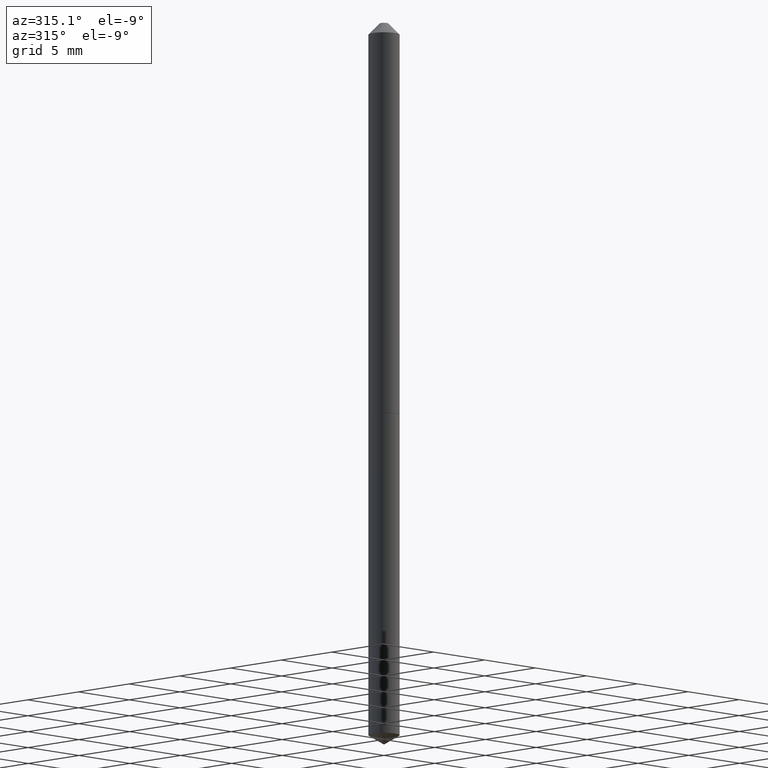
[diagram: clean part render]
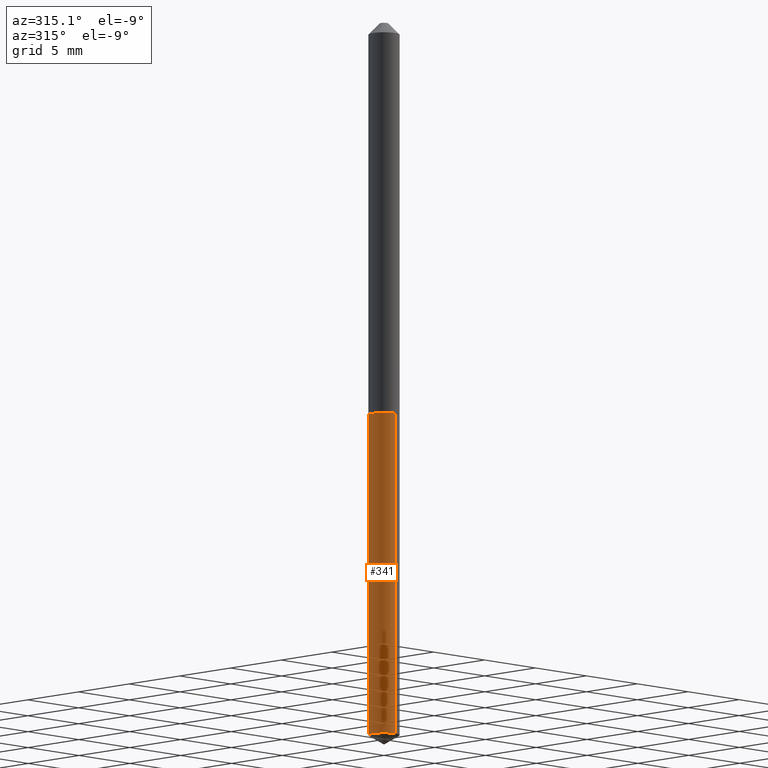
[diagram: same view with one face highlighted and labeled with its STEP entity id]
A machine part, auxiliary view. The second image highlights one B-rep face of the part: STEP entity #341.
In plain terms, the highlighted cylindrical surface (edge-blend (fillet) strip) has radius 1.0922 mm, axis along (-0, 0, 1).
Its self-contained STEP definition (entity closure, byte-faithful):
#27 = DIRECTION ( 'NONE',  ( -6.982962677686265922E-15, -1.000000000000000000, 3.176567434493329168E-15 ) ) ;
#31 = DIRECTION ( 'NONE',  ( -2.445460029168430373E-29, 3.491493908030625659E-15, 1.000000000000000000 ) ) ;
#35 = LINE ( 'NONE', #38, #353 ) ;
#36 = CYLINDRICAL_SURFACE ( 'NONE', #90, 0.04300000000000000350 ) ;
#38 = CARTESIAN_POINT ( 'NONE',  ( 3.055333763768695809E-16, 0.04299999999999620792, -1.086000000000000076 ) ) ;
#41 = CIRCLE ( 'NONE', #53, 0.04300000000000000350 ) ;
#53 = AXIS2_PLACEMENT_3D ( 'NONE', #124, #60, #182 ) ;
#60 = DIRECTION ( 'NONE',  ( -2.445460029168430373E-29, 3.491493908030625659E-15, 1.000000000000000000 ) ) ;
#70 = DIRECTION ( 'NONE',  ( -6.982962677686265922E-15, -1.000000000000000000, 3.176567434493329168E-15 ) ) ;
#76 = EDGE_LOOP ( 'NONE', ( #228, #113, #144, #371 ) ) ;
#90 = AXIS2_PLACEMENT_3D ( 'NONE', #282, #31, #70 ) ;
#108 = VERTEX_POINT ( 'NONE', #232 ) ;
#113 = ORIENTED_EDGE ( 'NONE', *, *, #162, .T. ) ;
#117 = VERTEX_POINT ( 'NONE', #145 ) ;
#119 = DIRECTION ( 'NONE',  ( -2.445460029168430373E-29, 3.491493908030625265E-15, 1.000000000000000000 ) ) ;
#124 = CARTESIAN_POINT ( 'NONE',  ( 4.827746223218873245E-29, -6.892764414714510057E-15, -1.974162993381815445 ) ) ;
#144 = ORIENTED_EDGE ( 'NONE', *, *, #167, .T. ) ;
#145 = CARTESIAN_POINT ( 'NONE',  ( 3.055333763768913732E-16, 0.04299999999999312011, -1.974162993381815667 ) ) ;
#162 = EDGE_CURVE ( 'NONE', #117, #255, #41, .T. ) ;
#167 = EDGE_CURVE ( 'NONE', #255, #266, #302, .T. ) ;
#181 = EDGE_CURVE ( 'NONE', #108, #266, #298, .T. ) ;
#182 = DIRECTION ( 'NONE',  ( -6.982962677686265922E-15, -1.000000000000000000, 6.353134868986658336E-15 ) ) ;
#187 = CARTESIAN_POINT ( 'NONE',  ( -3.002673951404828859E-16, -0.04300000000000379213, -1.085999999999999854 ) ) ;
#204 = DIRECTION ( 'NONE',  ( -2.445460029168430373E-29, 3.491493908030625659E-15, 1.000000000000000000 ) ) ;
#215 = FACE_OUTER_BOUND ( 'NONE', #76, .T. ) ;
#228 = ORIENTED_EDGE ( 'NONE', *, *, #352, .F. ) ;
#232 = CARTESIAN_POINT ( 'NONE',  ( 3.055333763768914225E-16, 0.04299999999999620792, -1.086000000000000076 ) ) ;
#238 = CARTESIAN_POINT ( 'NONE',  ( -3.002673951404828859E-16, -0.04300000000000379213, -1.085999999999999854 ) ) ;
#244 = CARTESIAN_POINT ( 'NONE',  ( -3.002673951404612415E-16, -0.04300000000000690770, -1.974162993381815001 ) ) ;
#245 = AXIS2_PLACEMENT_3D ( 'NONE', #272, #204, #27 ) ;
#255 = VERTEX_POINT ( 'NONE', #244 ) ;
#266 = VERTEX_POINT ( 'NONE', #187 ) ;
#267 = VECTOR ( 'NONE', #119, 39.37007874015748143 ) ;
#272 = CARTESIAN_POINT ( 'NONE',  ( 2.655779123517058654E-29, -3.791748733983655635E-15, -1.086000000000000076 ) ) ;
#281 = DIRECTION ( 'NONE',  ( -2.445460029168430373E-29, 3.491493908030625265E-15, 1.000000000000000000 ) ) ;
#282 = CARTESIAN_POINT ( 'NONE',  ( 2.655779123517058654E-29, -3.791748733983655635E-15, -1.086000000000000076 ) ) ;
#298 = CIRCLE ( 'NONE', #245, 0.04300000000000000350 ) ;
#302 = LINE ( 'NONE', #238, #267 ) ;
#341 = ADVANCED_FACE ( 'NONE', ( #215 ), #36, .T. ) ;
#352 = EDGE_CURVE ( 'NONE', #117, #108, #35, .T. ) ;
#353 = VECTOR ( 'NONE', #281, 39.37007874015748143 ) ;
#371 = ORIENTED_EDGE ( 'NONE', *, *, #181, .F. ) ;